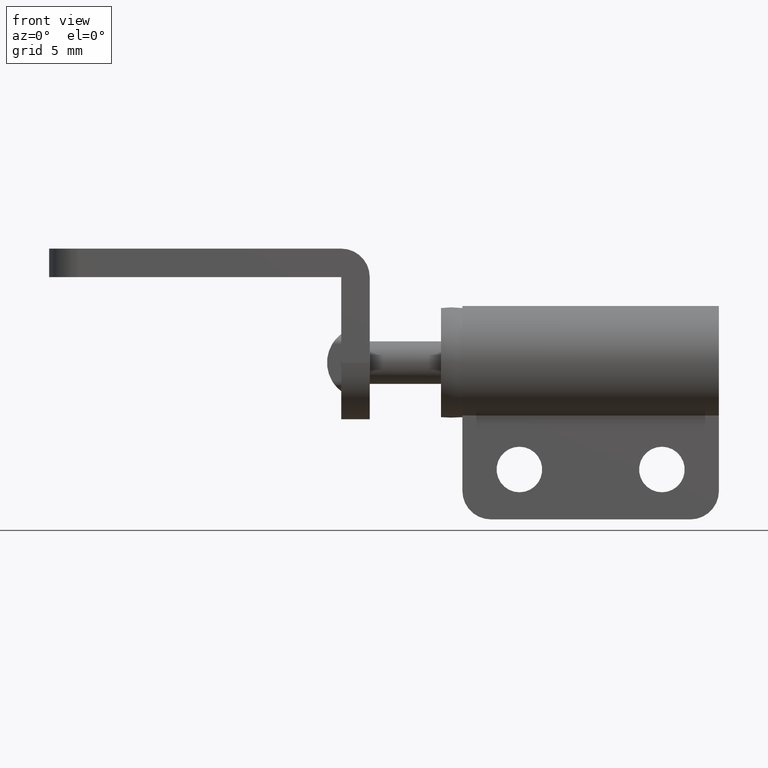
[diagram: clean part render]
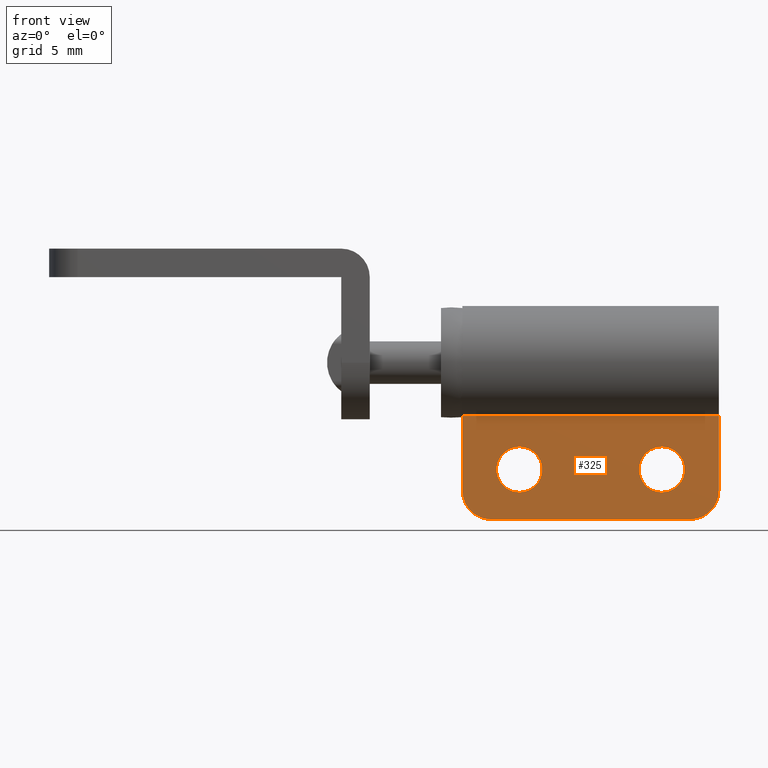
[diagram: same view with one face highlighted and labeled with its STEP entity id]
A machine part, front view. The second image highlights one B-rep face of the part: STEP entity #325.
In plain terms, the highlighted planar face has unit normal (0, 1, 0).
Its self-contained STEP definition (entity closure, byte-faithful):
#325=ADVANCED_FACE('',(#1021,#1022,#1023),#1020,.F.);
#1020=PLANE('',#1748);
#1021=FACE_OUTER_BOUND('',#1749,.T.);
#1022=FACE_BOUND('',#1750,.T.);
#1023=FACE_BOUND('',#1751,.T.);
#1745=CARTESIAN_POINT('',(4.70000000000E+00,-1.50000000000E+00,-1.17291901000E+01));
#1746=DIRECTION('',(0.00000000000E+00,1.00000000000E+00,0.00000000000E+00));
#1747=DIRECTION('',(0.00000000000E+00,0.00000000000E+00,1.00000000000E+00));
#1748=AXIS2_PLACEMENT_3D('',#1745,#1746,#1747);
#1749=EDGE_LOOP('',(#2244,#2245,#2246,#2247,#2248,#2249));
#1750=EDGE_LOOP('',(#2250,#2251,#2252));
#1751=EDGE_LOOP('',(#2253,#2254,#2255));
#2244=ORIENTED_EDGE('',*,*,#2593,.F.);
#2245=ORIENTED_EDGE('',*,*,#2582,.T.);
#2246=ORIENTED_EDGE('',*,*,#2565,.F.);
#2247=ORIENTED_EDGE('',*,*,#2594,.T.);
#2248=ORIENTED_EDGE('',*,*,#2574,.T.);
#2249=ORIENTED_EDGE('',*,*,#2579,.T.);
#2250=ORIENTED_EDGE('',*,*,#2595,.F.);
#2251=ORIENTED_EDGE('',*,*,#2596,.F.);
#2252=ORIENTED_EDGE('',*,*,#2597,.F.);
#2253=ORIENTED_EDGE('',*,*,#2598,.F.);
#2254=ORIENTED_EDGE('',*,*,#2599,.F.);
#2255=ORIENTED_EDGE('',*,*,#2600,.F.);
#2565=EDGE_CURVE('',#3666,#3667,#3668,.T.);
#2574=EDGE_CURVE('',#3730,#3723,#3731,.T.);
#2579=EDGE_CURVE('',#3723,#3764,#3765,.T.);
#2582=EDGE_CURVE('',#3784,#3667,#3785,.T.);
#2593=EDGE_CURVE('',#3784,#3764,#3858,.T.);
#2594=EDGE_CURVE('',#3666,#3730,#3864,.T.);
#2595=EDGE_CURVE('',#3870,#3871,#3872,.T.);
#2596=EDGE_CURVE('',#3878,#3870,#3879,.T.);
#2597=EDGE_CURVE('',#3871,#3878,#3885,.T.);
#2598=EDGE_CURVE('',#3891,#3892,#3893,.T.);
#2599=EDGE_CURVE('',#3899,#3891,#3900,.T.);
#2600=EDGE_CURVE('',#3892,#3899,#3906,.T.);
#3666=VERTEX_POINT('',#5156);
#3667=VERTEX_POINT('',#5157);
#3668=LINE('',#5158,#5159);
#3723=VERTEX_POINT('',#5193);
#3730=VERTEX_POINT('',#5197);
#3731=LINE('',#5198,#5199);
#3764=VERTEX_POINT('',#5220);
#3765=CIRCLE('',#5224,2.00000000000E+00);
#3784=VERTEX_POINT('',#5233);
#3785=CIRCLE('',#5237,2.00000000000E+00);
#3858=LINE('',#5282,#5283);
#3864=LINE('',#5285,#5286);
#3870=VERTEX_POINT('',#5288);
#3871=VERTEX_POINT('',#5289);
#3872=CIRCLE('',#5293,1.60000000000E+00);
#3878=VERTEX_POINT('',#5294);
#3879=CIRCLE('',#5298,1.60000000000E+00);
#3885=CIRCLE('',#5302,1.60000000000E+00);
#3891=VERTEX_POINT('',#5303);
#3892=VERTEX_POINT('',#5304);
#3893=CIRCLE('',#5308,1.60000000000E+00);
#3899=VERTEX_POINT('',#5309);
#3900=CIRCLE('',#5313,1.60000000000E+00);
#3906=CIRCLE('',#5317,1.60000000000E+00);
#5156=CARTESIAN_POINT('',(2.45000000000E+01,-1.50000000000E+00,-3.70809900000E+00));
#5157=CARTESIAN_POINT('',(2.45000000000E+01,-1.50000000000E+00,-9.00000000000E+00));
#5158=CARTESIAN_POINT('',(2.45000000000E+01,-1.50000000000E+00,-3.70809900000E+00));
#5159=VECTOR('',#5160,5.29190100000E+00);
#5160=DIRECTION('',(0.00000000000E+00,0.00000000000E+00,-1.00000000000E+00));
#5193=CARTESIAN_POINT('',(6.50000000000E+00,-1.50000000000E+00,-9.00000000000E+00));
#5197=CARTESIAN_POINT('',(6.50000000000E+00,-1.50000000000E+00,-3.70809900000E+00));
#5198=CARTESIAN_POINT('',(6.50000000000E+00,-1.50000000000E+00,-3.70809900000E+00));
#5199=VECTOR('',#5200,5.29190100000E+00);
#5200=DIRECTION('',(0.00000000000E+00,0.00000000000E+00,-1.00000000000E+00));
#5220=CARTESIAN_POINT('',(8.50000000000E+00,-1.50000000000E+00,-1.10000000000E+01));
#5221=CARTESIAN_POINT('',(8.50000000000E+00,-1.50000000000E+00,-9.00000000000E+00));
#5222=DIRECTION('',(3.48630559684E-32,-1.00000000000E+00,3.92523114671E-17));
#5223=DIRECTION('',(1.00000000000E+00,-0.00000000000E+00,-8.88178419700E-16));
#5224=AXIS2_PLACEMENT_3D('',#5221,#5222,#5223);
#5233=CARTESIAN_POINT('',(2.25000000000E+01,-1.50000000000E+00,-1.10000000000E+01));
#5234=CARTESIAN_POINT('',(2.25000000000E+01,-1.50000000000E+00,-9.00000000000E+00));
#5235=DIRECTION('',(-3.92523114671E-17,-1.00000000000E+00,2.09178335811E-31));
#5236=DIRECTION('',(5.32907051820E-15,-0.00000000000E+00,1.00000000000E+00));
#5237=AXIS2_PLACEMENT_3D('',#5234,#5235,#5236);
#5282=CARTESIAN_POINT('',(2.25000000000E+01,-1.50000000000E+00,-1.10000000000E+01));
#5283=VECTOR('',#5284,1.40000000000E+01);
#5284=DIRECTION('',(-1.00000000000E+00,0.00000000000E+00,0.00000000000E+00));
#5285=CARTESIAN_POINT('',(2.45000000000E+01,-1.50000000000E+00,-3.70809900000E+00));
#5286=VECTOR('',#5287,1.80000000000E+01);
#5287=DIRECTION('',(-1.00000000000E+00,0.00000000000E+00,0.00000000000E+00));
#5288=CARTESIAN_POINT('',(2.20888153112E+01,-1.50000000000E+00,-7.68885419443E+00));
#5289=CARTESIAN_POINT('',(2.05000000000E+01,-1.50000000000E+00,-5.90000000000E+00));
#5290=CARTESIAN_POINT('',(2.05000000000E+01,-1.50000000000E+00,-7.50000000000E+00));
#5291=DIRECTION('',(-2.53635668561E-16,-1.00000000000E+00,-9.58067439938E-16));
#5292=DIRECTION('',(4.27435864481E-15,-9.58067439938E-16,1.00000000000E+00));
#5293=AXIS2_PLACEMENT_3D('',#5290,#5291,#5292);
#5294=CARTESIAN_POINT('',(1.89112174291E+01,-1.50000000000E+00,-7.31087056694E+00));
#5295=CARTESIAN_POINT('',(2.05000000000E+01,-1.50000000000E+00,-7.50000000000E+00));
#5296=DIRECTION('',(-2.53635668561E-16,-1.00000000000E+00,-9.58067439938E-16));
#5297=DIRECTION('',(4.27435864481E-15,-9.58067439938E-16,1.00000000000E+00));
#5298=AXIS2_PLACEMENT_3D('',#5295,#5296,#5297);
#5299=CARTESIAN_POINT('',(2.05000000000E+01,-1.50000000000E+00,-7.50000000000E+00));
#5300=DIRECTION('',(-2.53635668561E-16,-1.00000000000E+00,-9.58067439938E-16));
#5301=DIRECTION('',(4.27435864481E-15,-9.58067439938E-16,1.00000000000E+00));
#5302=AXIS2_PLACEMENT_3D('',#5299,#5300,#5301);
#5303=CARTESIAN_POINT('',(1.20888153112E+01,-1.50000000000E+00,-7.68885419443E+00));
#5304=CARTESIAN_POINT('',(1.05000000000E+01,-1.50000000000E+00,-5.90000000000E+00));
#5305=CARTESIAN_POINT('',(1.05000000000E+01,-1.50000000000E+00,-7.50000000000E+00));
#5306=DIRECTION('',(-2.53635668561E-16,-1.00000000000E+00,-9.58067439938E-16));
#5307=DIRECTION('',(-1.38777878078E-16,-9.58067439938E-16,1.00000000000E+00));
#5308=AXIS2_PLACEMENT_3D('',#5305,#5306,#5307);
#5309=CARTESIAN_POINT('',(8.91121742911E+00,-1.50000000000E+00,-7.31087056694E+00));
#5310=CARTESIAN_POINT('',(1.05000000000E+01,-1.50000000000E+00,-7.50000000000E+00));
#5311=DIRECTION('',(-2.53635668561E-16,-1.00000000000E+00,-9.58067439938E-16));
#5312=DIRECTION('',(-1.38777878078E-16,-9.58067439938E-16,1.00000000000E+00));
#5313=AXIS2_PLACEMENT_3D('',#5310,#5311,#5312);
#5314=CARTESIAN_POINT('',(1.05000000000E+01,-1.50000000000E+00,-7.50000000000E+00));
#5315=DIRECTION('',(-2.53635668561E-16,-1.00000000000E+00,-9.58067439938E-16));
#5316=DIRECTION('',(-1.38777878078E-16,-9.58067439938E-16,1.00000000000E+00));
#5317=AXIS2_PLACEMENT_3D('',#5314,#5315,#5316);